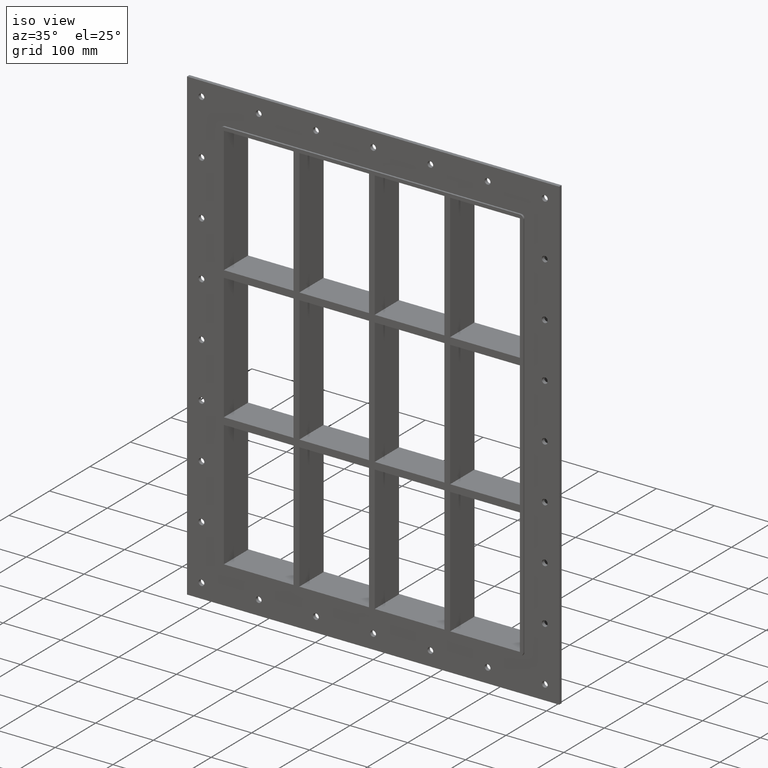
[diagram: clean part render]
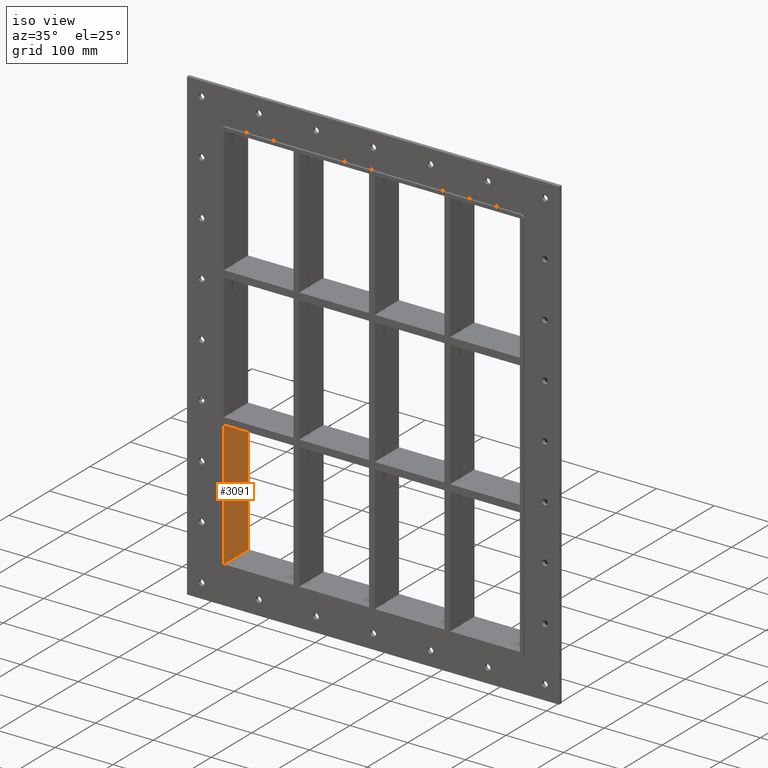
[diagram: same view with one face highlighted and labeled with its STEP entity id]
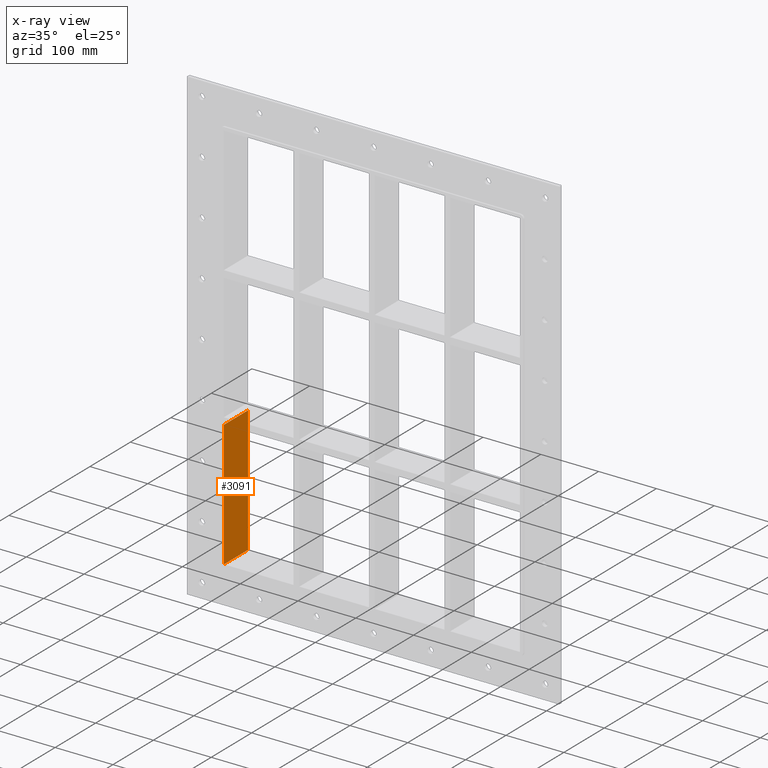
[diagram: x-ray of the same camera — body ghosted, the highlighted face saturated]
A machine part, iso view. The second image highlights one B-rep face of the part: STEP entity #3091.
The next image is the same camera in x-ray: the body ghosted, the highlighted face saturated — about 0% of this face is hidden behind the body in this view.
In plain terms, the highlighted planar face has unit normal (-1, 0, 0).
Its self-contained STEP definition (entity closure, byte-faithful):
#1676=CARTESIAN_POINT('',(-255.99999999999972,57.0,-121.00000000000932));
#1677=VERTEX_POINT('',#1676);
#1678=CARTESIAN_POINT('',(-256.00000000000006,57.0,-339.0));
#1679=VERTEX_POINT('',#1678);
#1680=CARTESIAN_POINT('',(-256.00000000000006,57.0,-121.00000000000932));
#1681=DIRECTION('',(0.0,0.0,-1.0));
#1682=VECTOR('',#1681,217.99999999999068);
#1683=LINE('',#1680,#1682);
#1684=EDGE_CURVE('',#1677,#1679,#1683,.T.);
#2335=CARTESIAN_POINT('',(-255.99999999999972,-3.0,-121.00000000000932));
#2336=VERTEX_POINT('',#2335);
#2351=CARTESIAN_POINT('',(-256.00000000000006,-3.0,-339.0));
#2352=VERTEX_POINT('',#2351);
#2359=CARTESIAN_POINT('',(-256.00000000000006,-3.0,-339.0));
#2360=DIRECTION('',(0.0,0.0,1.0));
#2361=VECTOR('',#2360,217.99999999999068);
#2362=LINE('',#2359,#2361);
#2363=EDGE_CURVE('',#2352,#2336,#2362,.T.);
#2491=CARTESIAN_POINT('',(-256.00000000000006,57.000000000000007,-121.00000000000932));
#2492=DIRECTION('',(0.0,-1.0,0.0));
#2493=VECTOR('',#2492,60.000000000000007);
#2494=LINE('',#2491,#2493);
#2495=EDGE_CURVE('',#1677,#2336,#2494,.T.);
#2602=CARTESIAN_POINT('',(-256.00000000000006,-3.0,-339.0));
#2603=DIRECTION('',(0.0,1.0,0.0));
#2604=VECTOR('',#2603,60.0);
#2605=LINE('',#2602,#2604);
#2606=EDGE_CURVE('',#2352,#1679,#2605,.T.);
#3080=CARTESIAN_POINT('',(-256.00000000000006,0.0,-339.0));
#3081=DIRECTION('',(-1.0,0.0,0.0));
#3082=DIRECTION('',(0.0,0.0,1.0));
#3083=AXIS2_PLACEMENT_3D('',#3080,#3081,#3082);
#3084=PLANE('',#3083);
#3085=ORIENTED_EDGE('',*,*,#2495,.T.);
#3086=ORIENTED_EDGE('',*,*,#2363,.F.);
#3087=ORIENTED_EDGE('',*,*,#2606,.T.);
#3088=ORIENTED_EDGE('',*,*,#1684,.F.);
#3089=EDGE_LOOP('',(#3085,#3086,#3087,#3088));
#3090=FACE_OUTER_BOUND('',#3089,.T.);
#3091=ADVANCED_FACE('',(#3090),#3084,.F.);